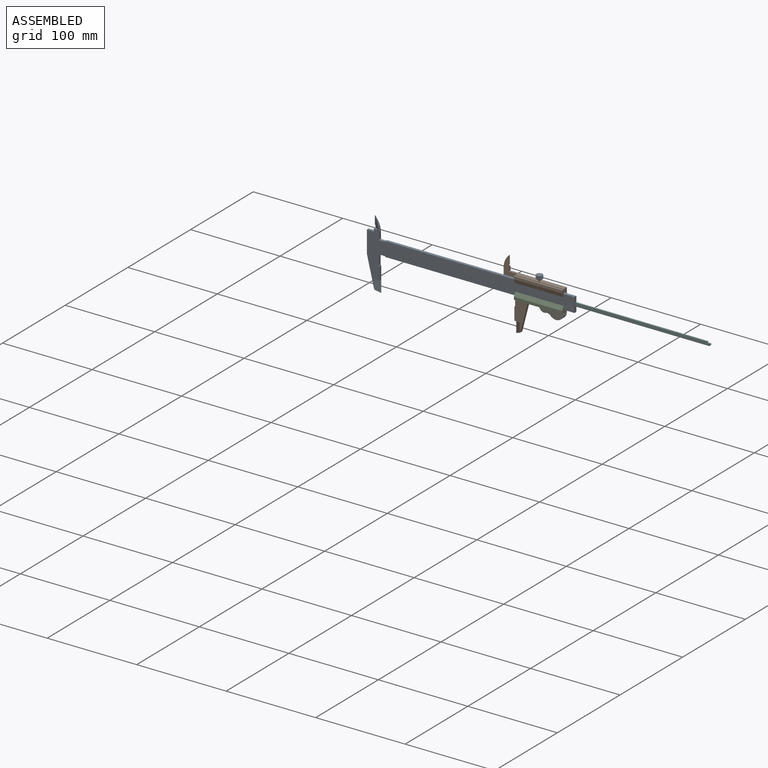
[diagram: assembled view]
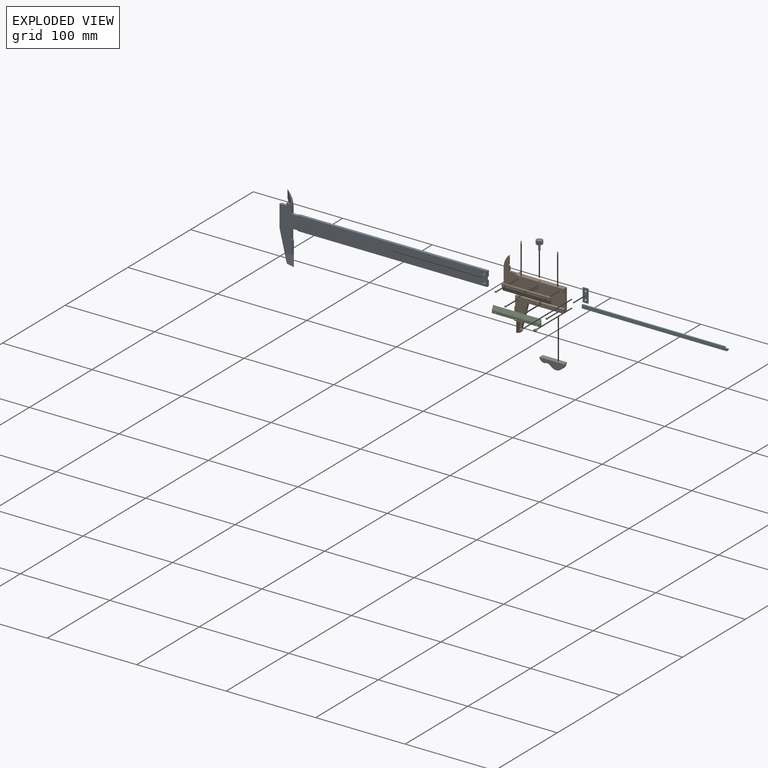
[diagram: exploded view]
GUIDED TOUR — MATED ASSEMBLY (Onshape document 9df944615ff0814e693e3ae6, AutoMate assembly 9df944615ff0814e693e3ae6_f2f7348a1d5a707c2a58e571_02034f61266606af6208ce54_default)

This assembly has 18 components, labeled P0..P17 below (a component is one placed occurrence of a part; the same part can appear more than once), held together by 18 mates. A mate is a constraint between two components; its type names the relative motion it leaves free:
  CYLINDRICAL — leaves both rotation about and translation along the listed axis free,
  FASTENED — locks the two components together rigidly (no relative motion),
  PLANAR — leaves sliding in the plane through the listed point (normal = the listed direction) and rotation about that normal free,
  SLIDER — leaves translation along the listed axis free.
Axis/direction vectors are unit vectors and 'through' points are millimeter coordinates, both in the assembly's world frame.

MATES
  1. SLIDER "Slider 1": P17 <-> P16, axis (-1.000, 0.000, 0.000) through (-40.62, -35.06, 24.15) mm
  2. FASTENED "Fastened 1": P1 <-> P17, direction (0.000, -1.000, 0.000) through (9.38, -38.06, 42.77) mm
  3. FASTENED "Fastened 9": P6 <-> P1, direction (0.000, 1.000, 0.000) through (-36.62, -38.56, 42.77) mm
  4. FASTENED "Fastened 8": P15 <-> P1, direction (0.000, 1.000, 0.000) through (-13.62, -38.56, 42.77) mm
  5. FASTENED "Fastened 14": P9 <-> P17, direction (0.000, 0.000, 1.000) through (-34.96, -36.56, 44.90) mm
  6. FASTENED "Fastened 2": P2 <-> P17, direction (0.000, -1.000, 0.000) through (-36.62, -38.06, 22.02) mm
  7. FASTENED "Fastened 7": P11 <-> P1, direction (0.000, 1.000, 0.000) through (9.38, -38.56, 42.77) mm
  8. FASTENED "Fastened 12": P3 <-> P2, direction (0.000, 1.000, 0.000) through (-36.62, -38.81, 22.02) mm
  9. FASTENED "Fastened 4": P8 <-> P16, direction (0.000, 1.000, 0.000) through (22.08, -35.06, 36.65) mm
  10. FASTENED "Fastened 11": P10 <-> P2, direction (0.000, 1.000, 0.000) through (-13.62, -38.81, 22.02) mm
  11. FASTENED "Fastened 5": P7 <-> P16, direction (0.000, 1.000, 0.000) through (22.08, -36.56, 36.65) mm
  12. FASTENED "Fastened 6": P4 <-> P16, direction (0.000, 1.000, 0.000) through (22.08, -36.56, 27.65) mm
  13. FASTENED "Fastened 13": P13 <-> P17, direction (0.000, 0.000, 1.000) through (5.84, -36.56, 44.90) mm
  14. CYLINDRICAL "Cylindrical 1": P0 <-> P17, axis (0.000, 0.000, 1.000) through (-14.56, -36.56, 44.31) mm
  15. PLANAR "Planar 1": P17 <-> P5, direction (1.000, 0.000, 0.000) through (13.38, -34.60, 32.40) mm
  16. FASTENED "Fastened 10": P12 <-> P2, direction (0.000, 1.000, 0.000) through (9.38, -38.81, 22.02) mm
  17. FASTENED "Fastened 3": P14 <-> P17, direction (0.000, 0.000, 1.000) through (13.38, -32.56, 19.90) mm
  18. SLIDER "Slider 2": P5 <-> P16, axis (-1.000, 0.000, 0.000) through (93.23, -36.71, 34.15) mm

ASSEMBLY ORDER
  1. P17 — the base component [order verified]
  2. P14 [order verified]
  3. P7 [order verified]
  4. P4 [order verified]
  5. P16 [order verified]
  6. P0 [order verified]
  7. P5 [order verified]
  8. P13 [order verified]
  9. P9 [order verified]
  10. P15 [order verified]
  11. P11 [order verified]
  12. P6 [order verified]
  13. P1 [order verified]
  14. P12 [order verified]
  15. P10 [order verified]
  16. P8 [order verified]
  17. P3 [order verified]
  18. P2 [order verified]
Order-tag legend:
  [order verified] — this step's position reverses a verified removal order: the component was checked to insert without passing through the ones already placed.

Of the 18 components, 4 carry the full construction recipe — the FeatureScript program that regenerates the part's solid from scratch; the rest are supplied as boundary geometry only.
Because this assembly has more than 12 components, the tour below covers the 12 most significant ones individually (every recipe-attached component first, then the largest by part volume), in assembly order; the remaining 6 are summarized together in a grouped section at the end.
Each toured component is shown spotlighted twice — in the assembled view, then in the exploded view, where a leader line traces a displaced component back to its assembled socket (saturated green if recipe-attached, orange if geometry-only; every other component desaturated gray) — followed by its recipe or geometry summary and the mates that hold it.
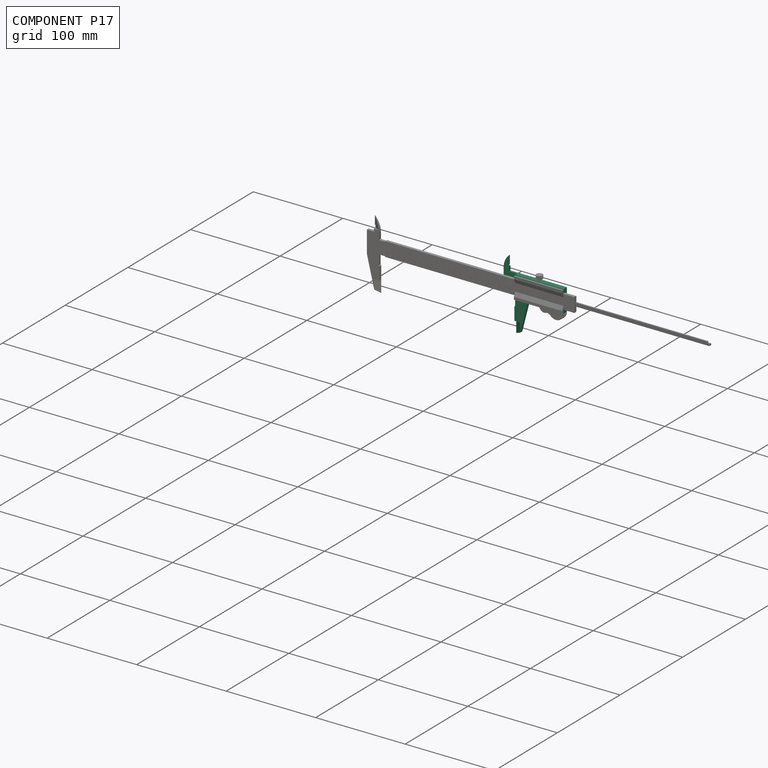
[diagram: component P17 — assembled]
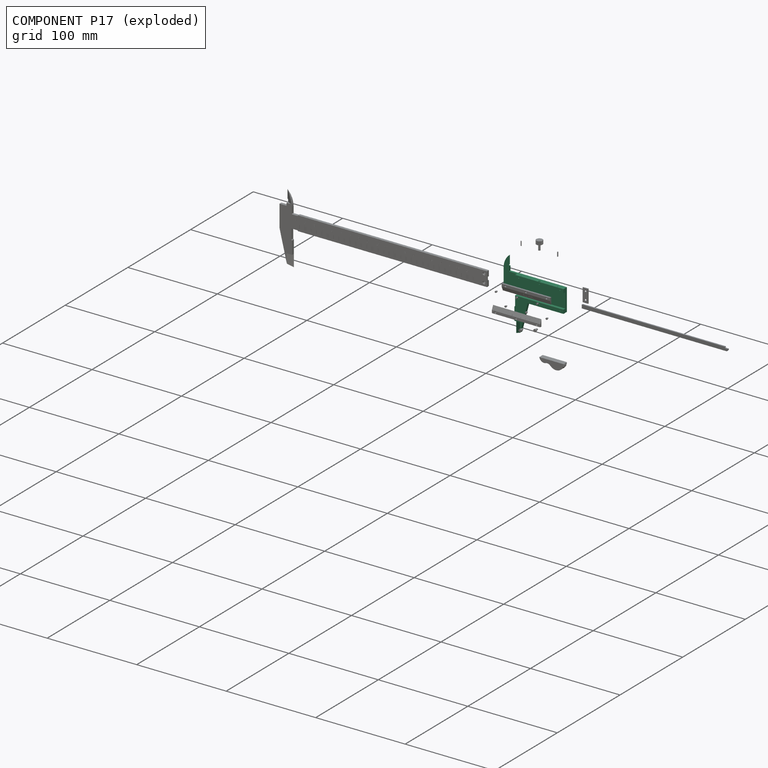
[diagram: component P17 — exploded]
COMPONENT P17 — recipe-attached (CADFS 00348871, mesh-verified: the recipe's output STEP matches this component's geometry to below the mesh-comparison resolution (tessellation chordal tolerance ~0.155 mm)).
Held by: SLIDER mate "Slider 1" to P16; FASTENED mate "Fastened 1" to P1; FASTENED mate "Fastened 14" to P9; FASTENED mate "Fastened 2" to P2; FASTENED mate "Fastened 13" to P13; CYLINDRICAL mate "Cylindrical 1" to P0; PLANAR mate "Planar 1" to P5; FASTENED mate "Fastened 3" to P14.
Construction recipe (FeatureScript — the CAD program that rebuilds this solid; sketch coordinates are in the units given by the * unit suffixes, e.g. mm):

FeatureScript 1511;
import(path : "onshape/std/geometry.fs", version : "1511.0");
import(path : "onshape/std/common.fs", version : "1511.0");
const mm = millimeter;
const VERTEX = EntityType.VERTEX;
const EDGE = EntityType.EDGE;
const FACE = EntityType.FACE;
const BODY = EntityType.BODY;
function v(x, y){return vector(x, y);}
function OD(order){return orderDisambiguation(order);}
function OSD(set){return originalSetDisambiguation(set);}
function TD(topology){return topologyDisambiguation(topology);}
function TDD(query){return trueDependencyDisambiguation(query);}
function sQuery(a, b, c) {return sketchEntityQuery(a, b, c);}

annotation { "Feature Type Name" : "Feature", "Feature Type Description" : "" }
export const myFeature = defineFeature(function(context is Context, id is Id, definition is map)
    precondition{}
    {
        {
            var Q0;
            Q0=qCreatedBy(makeId("Front.planeOp"),FACE);
            var sketch = newSketch(context, id + "F0", { "sketchPlane" : qUnion([Q0])});
            skLineSegment(sketch, "E0", {"start": v(0, 0) * mm, "end": v(-55.4, 0) * mm, "construction": true});
            skLineSegment(sketch, "E1", {"start": v(0, 12.5) * mm, "end": v(0, -12.5) * mm});
            skLineSegment(sketch, "E2", {"start": v(0, -12.5) * mm, "end": v(-40, -12.5) * mm});
            skLineSegment(sketch, "E3", {"start": v(-40, -12.5) * mm, "end": v(-48.17, -44.18) * mm});
            skLineSegment(sketch, "E4", {"start": v(-48.17, -44.18) * mm, "end": v(-54.8, -47.5) * mm});
            skLineSegment(sketch, "E5", {"start": v(-54.8, -47.5) * mm, "end": v(-54.8, -19.5) * mm});
            skLineSegment(sketch, "E6", {"start": v(-54.8, -19.5) * mm, "end": v(-54, -19.04) * mm});
            skLineSegment(sketch, "E7", {"start": v(-54, -19.04) * mm, "end": v(-54, -2.5) * mm});
            skLineSegment(sketch, "E8", {"start": v(-54, -2.5) * mm, "end": v(-68.93, -2.5) * mm});
            skLineSegment(sketch, "E9", {"start": v(-68.93, -2.5) * mm, "end": v(-68.93, 15.3) * mm});
            skLineSegment(sketch, "E10", {"start": v(0, 12.5) * mm, "end": v(-63, 12.5) * mm});
            skLineSegment(sketch, "E11", {"start": v(-63, 12.5) * mm, "end": v(-63, 19) * mm});
            skLineSegment(sketch, "E12", {"start": v(-62, 20) * mm, "end": v(-62, 29.5) * mm});
            skArc(sketch, "E13", {"start": v(-62, 29.5) * mm, "mid": v(-67.1, 23.2) * mm, "end": v(-68.93, 15.3) * mm});
            skArc(sketch, "E14", {"start": v(-62, 20) * mm, "mid": v(-62.7, 19.7) * mm, "end": v(-63, 19) * mm});
            skSolve(sketch);
        }
        {
            var Q0;
            Q0=qSketchRegion(id+"F0",true);
            extrude(context, id + "F1", {"entities" : qUnion([Q0]), "depth" : 5.5 * mm});
        }
        {
            var Q0;
            Q0=makeQuery(id+"F1.opExtrude","CAP_FACE",FACE,{"disambiguationData":[OSD([sQuery(id+"F0.wireOp",EDGE,"E1"),sQuery(id+"F0.wireOp",EDGE,"E2"),sQuery(id+"F0.wireOp",EDGE,"E3"),sQuery(id+"F0.wireOp",EDGE,"E4"),sQuery(id+"F0.wireOp",EDGE,"E5"),sQuery(id+"F0.wireOp",EDGE,"E6"),sQuery(id+"F0.wireOp",EDGE,"E7"),sQuery(id+"F0.wireOp",EDGE,"E8"),sQuery(id+"F0.wireOp",EDGE,"E9"),sQuery(id+"F0.wireOp",EDGE,"E10"),sQuery(id+"F0.wireOp",EDGE,"E11"),sQuery(id+"F0.wireOp",EDGE,"E12"),sQuery(id+"F0.wireOp",EDGE,"E13"),sQuery(id+"F0.wireOp",EDGE,"E14")])],"isStart":false});
            var sketch = newSketch(context, id + "F2", { "sketchPlane" : qUnion([Q0])});
            skLineSegment(sketch, "E15", {"start": v(0, 8.25) * mm, "end": v(0, -8.25) * mm});
            skLineSegment(sketch, "E16", {"start": v(0, -8.25) * mm, "end": v(-54, -8.25) * mm});
            skLineSegment(sketch, "E17", {"start": v(-54, -8.25) * mm, "end": v(-54, -2.5) * mm});
            skLineSegment(sketch, "E18", {"start": v(-54, -2.5) * mm, "end": v(-73.78, -2.5) * mm});
            skLineSegment(sketch, "E19", {"start": v(-73.78, -2.5) * mm, "end": v(-73.78, 31.93) * mm});
            skLineSegment(sketch, "E20", {"start": v(-73.78, 31.93) * mm, "end": v(-54, 31.93) * mm});
            skLineSegment(sketch, "E21", {"start": v(-54, 31.93) * mm, "end": v(-54, 8.25) * mm});
            skLineSegment(sketch, "E22", {"start": v(-54, 8.25) * mm, "end": v(0, 8.25) * mm});
            skSolve(sketch);
        }
        {
            var Q0;
            Q0=qSketchRegion(id+"F2",true);
            extrude(context, id + "F3", {"entities" : qUnion([Q0]), "operationType" : NewBodyOperationType.REMOVE, "oppositeDirection" : true, "depth" : 3 * mm});
        }
        {
            var Q0;
            {var subQ0=sQuery(id+"F0.wireOp",EDGE,"E1");var subQ1=sQuery(id+"F0.wireOp",EDGE,"E10");Q0=makeQuery(id+"F3.boolean.opBoolean","SPLIT",FACE,{"disambiguationData":[TD([makeQuery(id+"F1.opExtrude","SWEPT_FACE",FACE,{"disambiguationData":[OSD([subQ1])]})])],"derivedFrom":makeQuery(id+"F1.opExtrude","CAP_FACE",FACE,{"disambiguationData":[OSD([subQ0,sQuery(id+"F0.wireOp",EDGE,"E2"),sQuery(id+"F0.wireOp",EDGE,"E3"),sQuery(id+"F0.wireOp",EDGE,"E4"),sQuery(id+"F0.wireOp",EDGE,"E5"),sQuery(id+"F0.wireOp",EDGE,"E6"),sQuery(id+"F0.wireOp",EDGE,"E7"),sQuery(id+"F0.wireOp",EDGE,"E8"),sQuery(id+"F0.wireOp",EDGE,"E9"),subQ1,sQuery(id+"F0.wireOp",EDGE,"E11"),sQuery(id+"F0.wireOp",EDGE,"E12"),sQuery(id+"F0.wireOp",EDGE,"E13"),sQuery(id+"F0.wireOp",EDGE,"E14")])],"isStart":false})});}
            var sketch = newSketch(context, id + "F4", { "sketchPlane" : qUnion([Q0])});
            skLineSegment(sketch, "E23", {"start": v(0, 0) * mm, "end": v(-25.2, 0) * mm, "construction": true});
            skCircle(sketch, "E24", {"center": v(-4, 10.38) * mm, "radius": 0.5 * mm});
            skCircle(sketch, "E25", {"center": v(-27, 10.38) * mm, "radius": 0.5 * mm});
            skCircle(sketch, "E26", {"center": v(-50, 10.37) * mm, "radius": 0.5 * mm});
            skCircle(sketch, "E27.MirrorC", {"center": v(-50, -10.38) * mm, "radius": 0.5 * mm});
            skCircle(sketch, "E28.MirrorC", {"center": v(-27, -10.38) * mm, "radius": 0.5 * mm});
            skCircle(sketch, "E29.MirrorC", {"center": v(-4, -10.38) * mm, "radius": 0.5 * mm});
            skSolve(sketch);
        }
        {
            var Q0;
            Q0=qSketchRegion(id+"F4",true);
            extrude(context, id + "F5", {"entities" : qUnion([Q0]), "operationType" : NewBodyOperationType.REMOVE, "oppositeDirection" : true, "depth" : 1.12 * mm});
        }
        {
            var Q0;
            Q0=makeQuery(id+"F1.opExtrude","SWEPT_FACE",FACE,{"disambiguationData":[OSD([sQuery(id+"F0.wireOp",EDGE,"E10")])]});
            cPlane(context, id + "F6", {"entities" : qUnion([Q0]), "cplaneType" : CPlaneType.OFFSET, "offset" : 17.5 * mm, "width" : 150 * mm, "height" : 150 * mm});
        }
        {
            var Q0;
            Q0=makeQuery(id+"F1.opExtrude","SWEPT_FACE",FACE,{"disambiguationData":[OSD([sQuery(id+"F0.wireOp",EDGE,"E2")])]});
            var Q1;
            Q1=makeQuery(id+"F1.opExtrude","CAP_VERTEX",VERTEX,{"disambiguationData":[OSD([sQuery(id+"F0.wireOp",EDGE,"E4"),sQuery(id+"F0.wireOp",EDGE,"E5")])],"isStart":false});
            cPlane(context, id + "F7", {"entities" : qUnion([Q0, Q1]), "cplaneType" : CPlaneType.PLANE_POINT, "offset" : 34.75 * mm, "width" : 150 * mm, "height" : 150 * mm});
        }
        {
            var Q0;
            Q0=qCreatedBy(id+"F6.planeOp",FACE);
            var sketch = newSketch(context, id + "F8", { "sketchPlane" : qUnion([Q0])});
            skLineSegment(sketch, "E30.0", {"start": v(-62, -2.5) * mm, "end": v(-62, 0) * mm});
            skLineSegment(sketch, "E31", {"start": v(-62, 0) * mm, "end": v(-67.13, 0) * mm});
            skLineSegment(sketch, "E32", {"start": v(-67.13, 0) * mm, "end": v(-62, -2.5) * mm});
            skLineSegment(sketch, "E33", {"start": v(-62, -1.25) * mm, "end": v(-70.99, -1.25) * mm, "construction": true});
            skLineSegment(sketch, "E34.MirrorCS", {"start": v(-62, 0) * mm, "end": v(-62, -2.5) * mm});
            skSolve(sketch);
        }
        {
            var Q0;
            Q0=qSketchRegion(id+"F8",true);
            extrude(context, id + "F9", {"entities" : qUnion([Q0]), "operationType" : NewBodyOperationType.REMOVE, "oppositeDirection" : true, "depth" : 12.5 * mm});
        }
        {
            var Q0;
            Q0=makeQuery(id+"F1.opExtrude","SWEPT_FACE",FACE,{"disambiguationData":[OSD([sQuery(id+"F0.wireOp",EDGE,"E2")])]});
            var sketch = newSketch(context, id + "F10", { "sketchPlane" : qUnion([Q0])});
            skLineSegment(sketch, "E35.bottom", {"start": v(-40, 0) * mm, "end": v(-54.8, 0) * mm});
            skLineSegment(sketch, "E35.top", {"start": v(-40, 2.5) * mm, "end": v(-54.8, 2.5) * mm});
            skLineSegment(sketch, "E35.left", {"start": v(-40, 0) * mm, "end": v(-40, 2.5) * mm});
            skLineSegment(sketch, "E35.right", {"start": v(-54.8, 0) * mm, "end": v(-54.8, 2.5) * mm});
            skSolve(sketch);
        }
        {
            var Q0;
            Q0=qSketchRegion(id+"F10",true);
            extrude(context, id + "F11", {"entities" : qUnion([Q0]), "operationType" : NewBodyOperationType.REMOVE, "depth" : 47 * mm});
        }
        {
            var Q0;
            Q0=qCreatedBy(id+"F7.planeOp",FACE);
            var sketch = newSketch(context, id + "F12", { "sketchPlane" : qUnion([Q0])});
            skLineSegment(sketch, "E36.0", {"start": v(-54.8, 5.5) * mm, "end": v(-54.8, 2.5) * mm});
            skLineSegment(sketch, "E37", {"start": v(-54.8, 5.5) * mm, "end": v(-48.65, 5.5) * mm});
            skLineSegment(sketch, "E38", {"start": v(-48.65, 5.5) * mm, "end": v(-54.8, 2.5) * mm});
            skSolve(sketch);
        }
        {
            var Q0;
            Q0=qSketchRegion(id+"F12",true);
            extrude(context, id + "F13", {"entities" : qUnion([Q0]), "operationType" : NewBodyOperationType.REMOVE, "oppositeDirection" : true, "depth" : 13.5 * mm});
        }
        {
            var Q0;
            Q0=makeQuery(id+"F1.opExtrude","SWEPT_FACE",FACE,{"disambiguationData":[OSD([sQuery(id+"F0.wireOp",EDGE,"E10")])]});
            var sketch = newSketch(context, id + "F14", { "sketchPlane" : qUnion([Q0])});
            skCircle(sketch, "E39", {"center": v(-7.54, -4) * mm, "radius": 0.5 * mm});
            skCircle(sketch, "E40", {"center": v(-48.34, -4) * mm, "radius": 0.5 * mm});
            skSolve(sketch);
        }
        {
            var Q0;
            Q0=qSketchRegion(id+"F14",true);
            extrude(context, id + "F15", {"entities" : qUnion([Q0]), "operationType" : NewBodyOperationType.REMOVE, "endBound" : BoundingType.UP_TO_NEXT, "oppositeDirection" : true, "depth" : 3 * mm});
        }
        {
            var Q0;
            Q0=makeQuery(id+"F1.opExtrude","SWEPT_FACE",FACE,{"disambiguationData":[OSD([sQuery(id+"F0.wireOp",EDGE,"E10")])]});
            var sketch = newSketch(context, id + "F16", { "sketchPlane" : qUnion([Q0])});
            skCircle(sketch, "E41", {"center": v(-27.94, -4) * mm, "radius": 1 * mm});
            skPoint(sketch, "E42", {"position": v(-7.54, -4) * mm});
            skSolve(sketch);
        }
        {
            var Q0;
            Q0=qSketchRegion(id+"F16",true);
            extrude(context, id + "F17", {"entities" : qUnion([Q0]), "operationType" : NewBodyOperationType.REMOVE, "endBound" : BoundingType.UP_TO_NEXT, "oppositeDirection" : true, "depth" : 25 * mm});
        }
    });
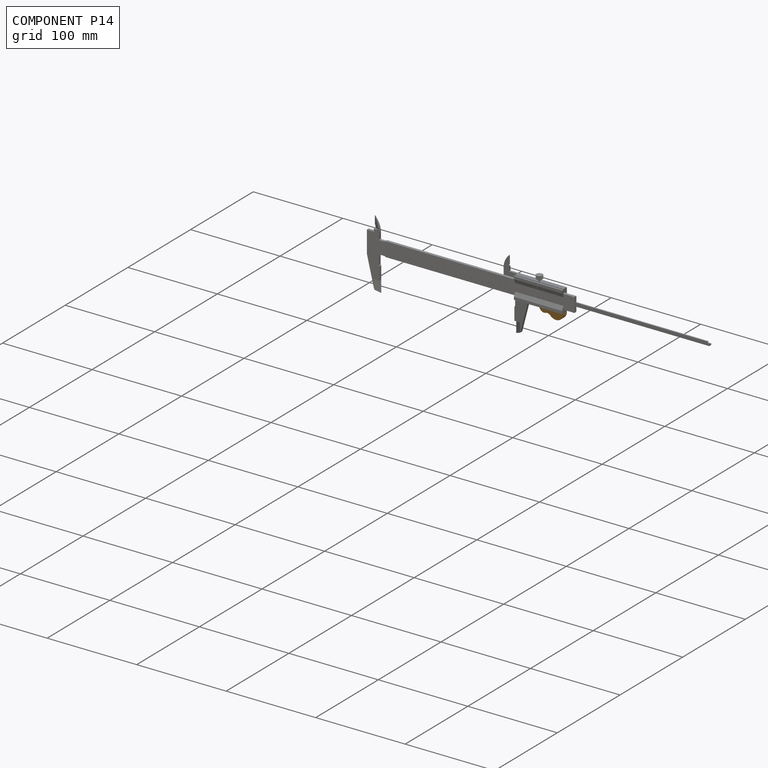
[diagram: component P14 — assembled]
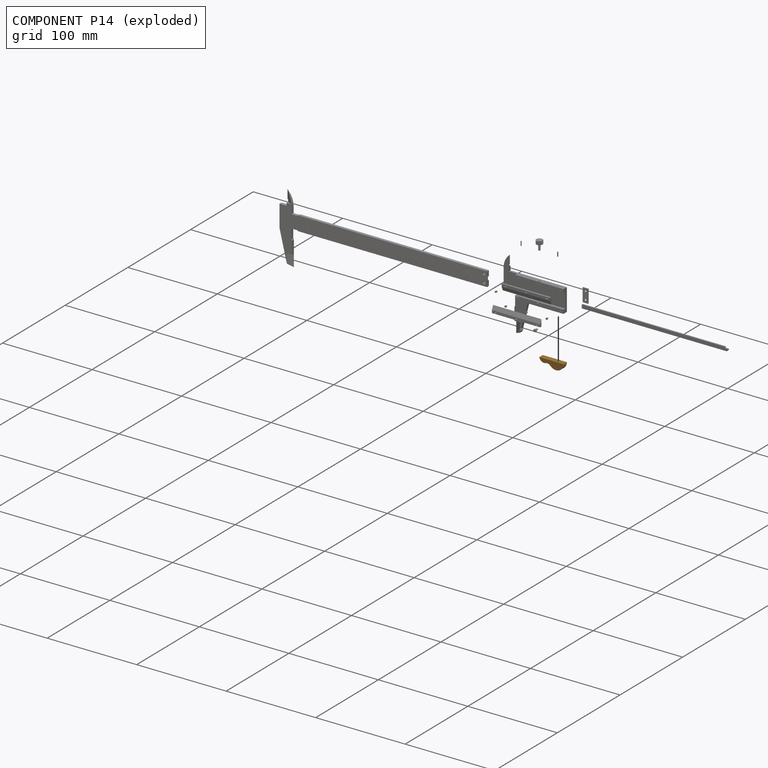
[diagram: component P14 — exploded]
COMPONENT P14 — geometry summary (no construction recipe available for this part):
  bounding box: 27.0 x 8.3 x 5.5 mm
  B-rep topology: 1 solid, 97 faces, 570 edges
  volume: 821 mm^3 (66% of its bounding box)
  symmetry: mirror-symmetric across its y mid-plane
Held by: FASTENED mate "Fastened 3" to P17.
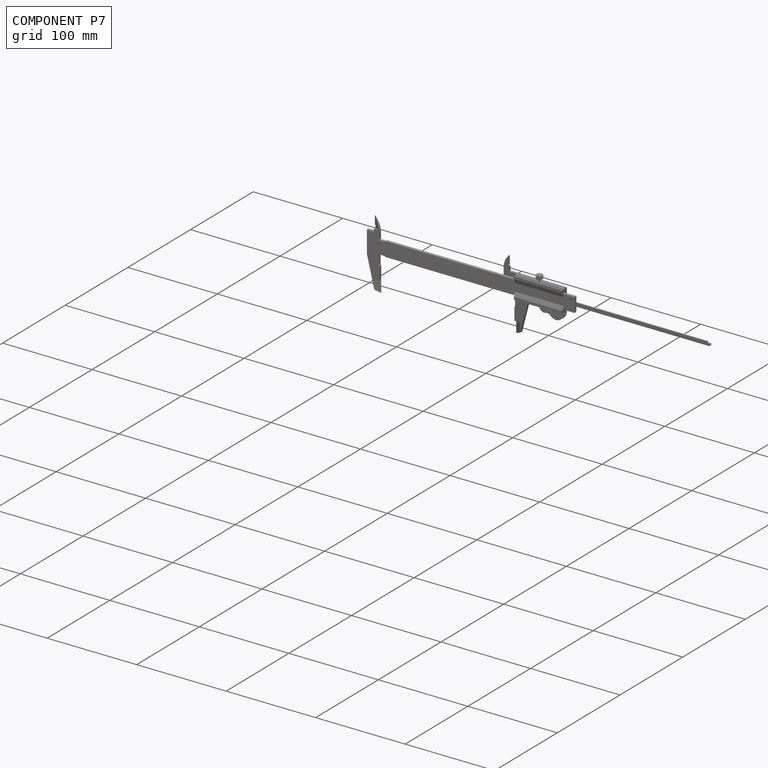
[diagram: component P7 — assembled]
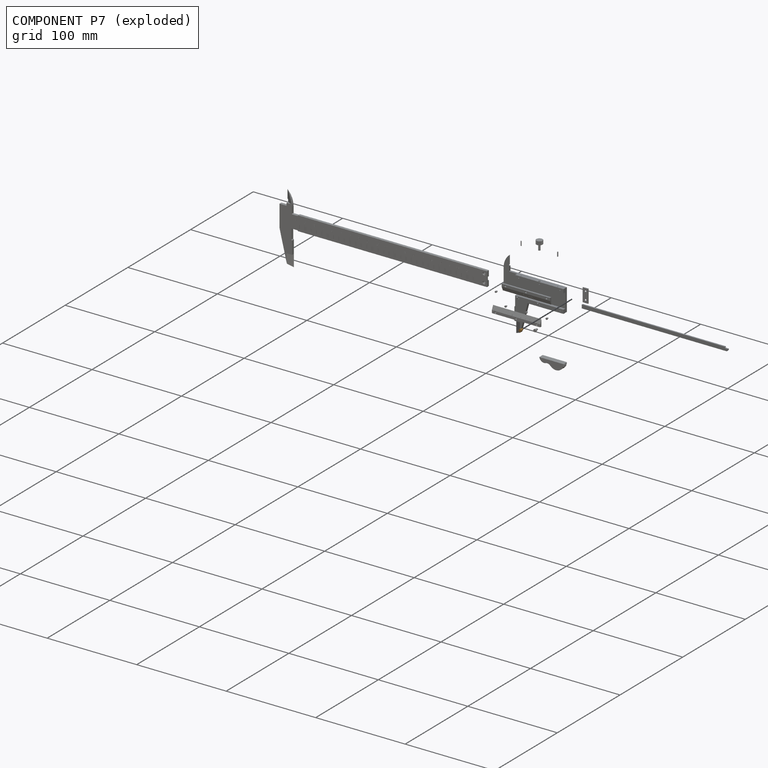
[diagram: component P7 — exploded]
COMPONENT P7 — geometry summary (no construction recipe available for this part):
  bounding box: 4.0 x 3.2 x 3.2 mm
  B-rep topology: 1 solid, 12 faces, 52 edges
  volume: 18 mm^3 (43% of its bounding box)
  symmetry: 2-fold rotationally symmetric about the z axis; mirror-symmetric across its x mid-plane, y mid-plane
Held by: FASTENED mate "Fastened 5" to P16.
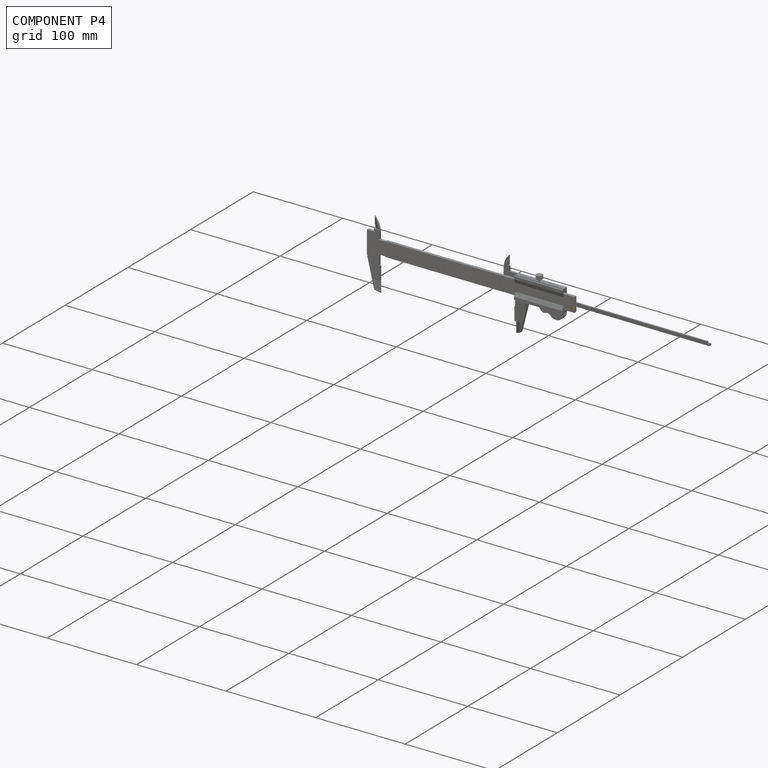
[diagram: component P4 — assembled]
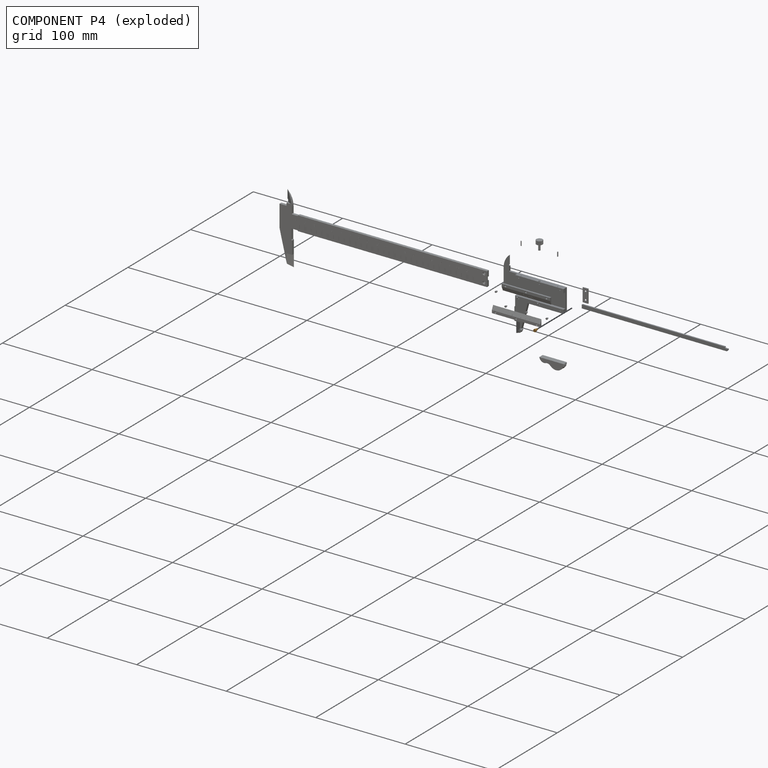
[diagram: component P4 — exploded]
COMPONENT P4 — geometry summary (no construction recipe available for this part):
  bounding box: 4.0 x 3.2 x 3.2 mm
  B-rep topology: 1 solid, 12 faces, 52 edges
  volume: 18 mm^3 (43% of its bounding box)
  symmetry: 2-fold rotationally symmetric about the z axis; mirror-symmetric across its x mid-plane, y mid-plane
Held by: FASTENED mate "Fastened 6" to P16.
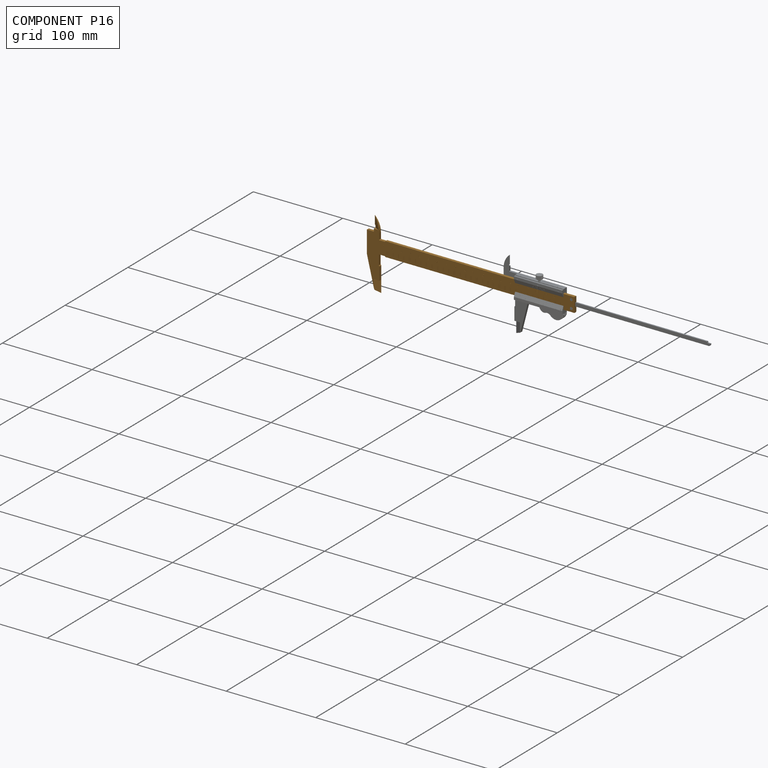
[diagram: component P16 — assembled]
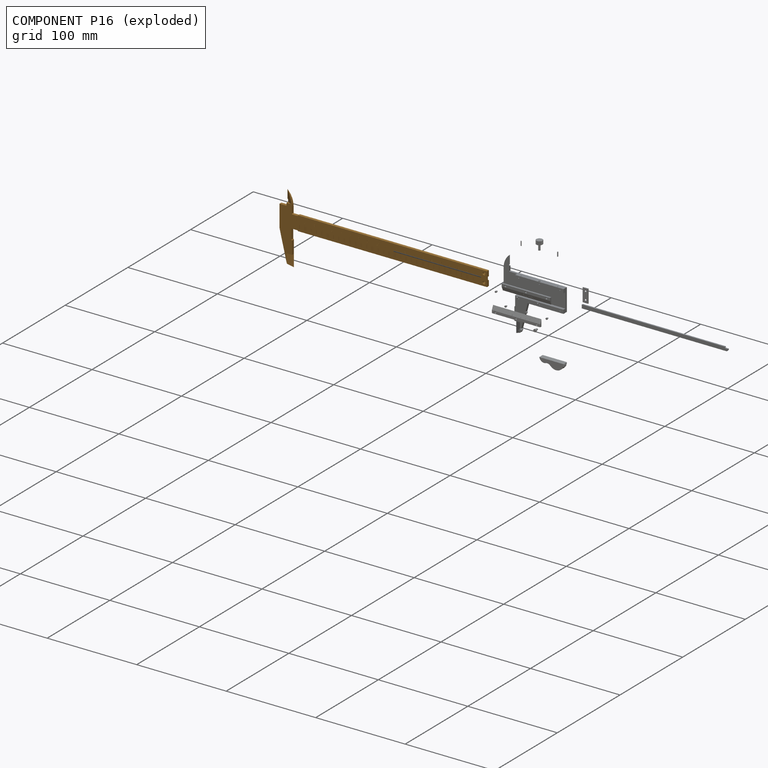
[diagram: component P16 — exploded]
COMPONENT P16 — geometry summary (no construction recipe available for this part):
  bounding box: 231.8 x 77.0 x 3.0 mm
  B-rep topology: 1 solid, 1584 faces, 8024 edges
  volume: 11036 mm^3 (21% of its bounding box)
Held by: SLIDER mate "Slider 1" to P17; FASTENED mate "Fastened 4" to P8; FASTENED mate "Fastened 5" to P7; FASTENED mate "Fastened 6" to P4; SLIDER mate "Slider 2" to P5.
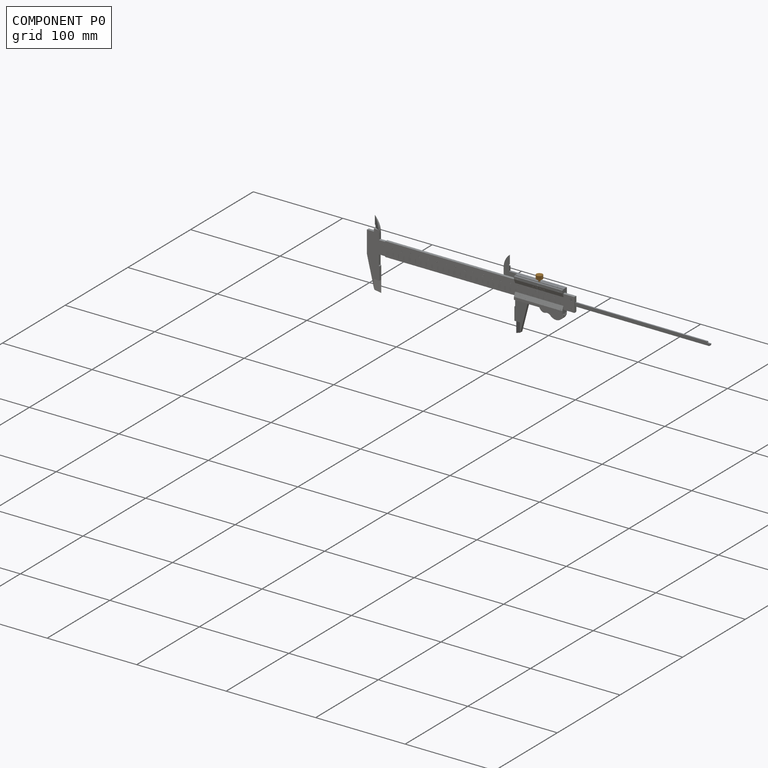
[diagram: component P0 — assembled]
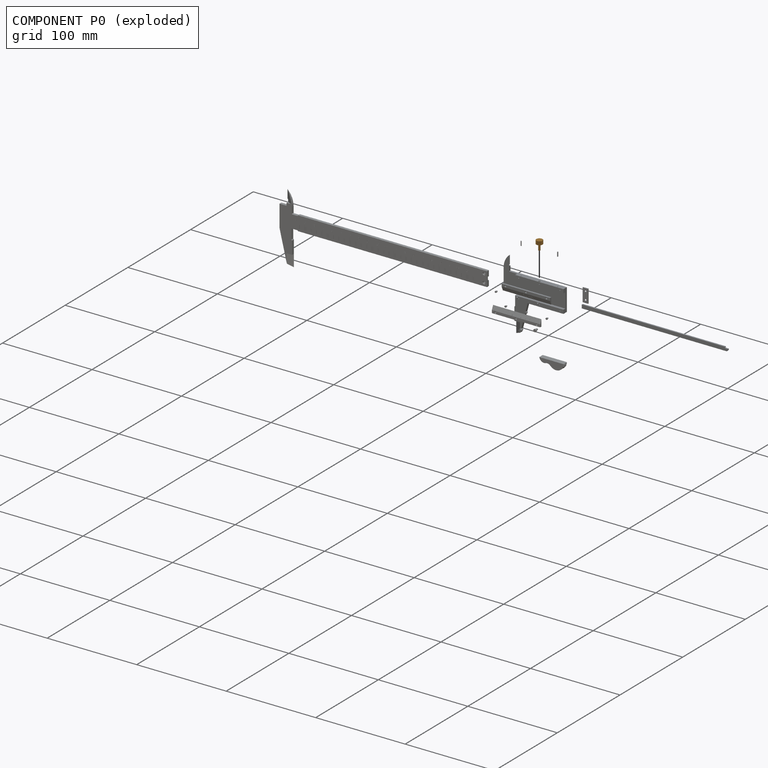
[diagram: component P0 — exploded]
COMPONENT P0 — geometry summary (no construction recipe available for this part):
  bounding box: 10.5 x 7.0 x 7.0 mm
  B-rep topology: 1 solid, 94 faces, 546 edges
  volume: 164 mm^3 (32% of its bounding box)
  symmetry: 6-fold rotationally symmetric about the y axis; mirror-symmetric across its x mid-plane, z mid-plane
Held by: CYLINDRICAL mate "Cylindrical 1" to P17.
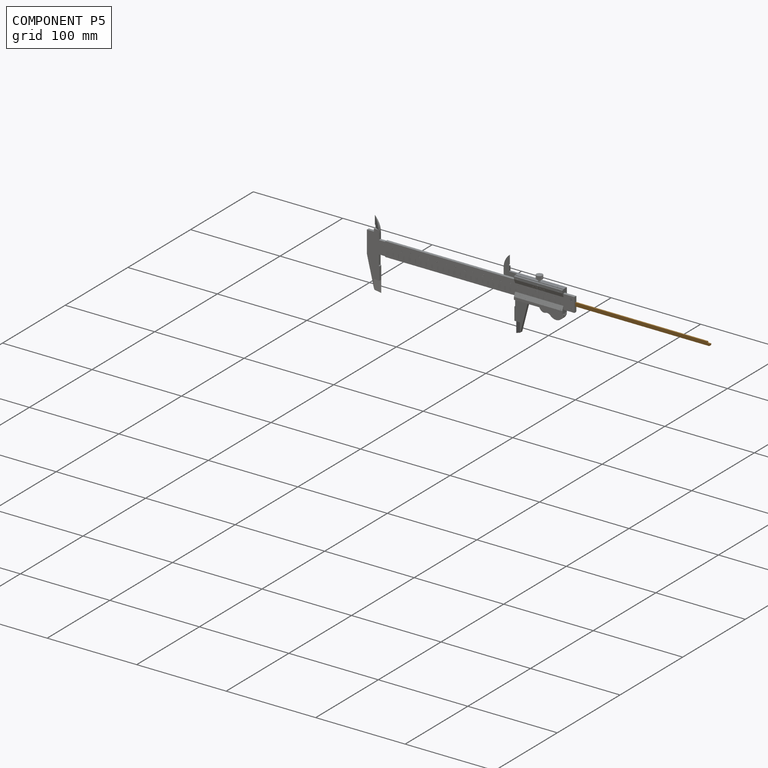
[diagram: component P5 — assembled]
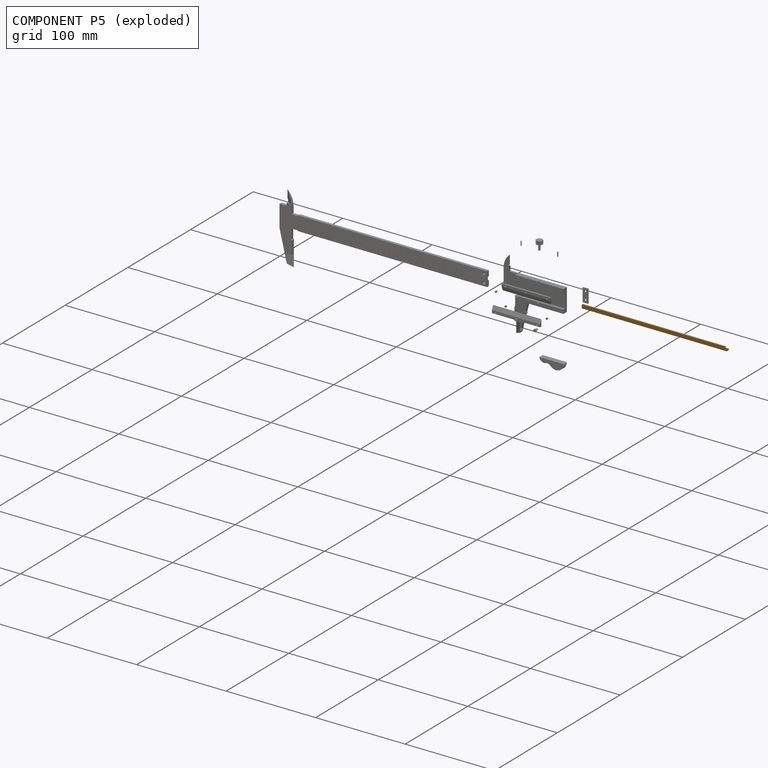
[diagram: component P5 — exploded]
COMPONENT P5 — geometry summary (no construction recipe available for this part):
  bounding box: 163.1 x 4.0 x 1.6 mm
  B-rep topology: 1 solid, 11 faces, 54 edges
  volume: 1021 mm^3 (99% of its bounding box)
  symmetry: mirror-symmetric across its x mid-plane
Held by: PLANAR mate "Planar 1" to P17; SLIDER mate "Slider 2" to P16.
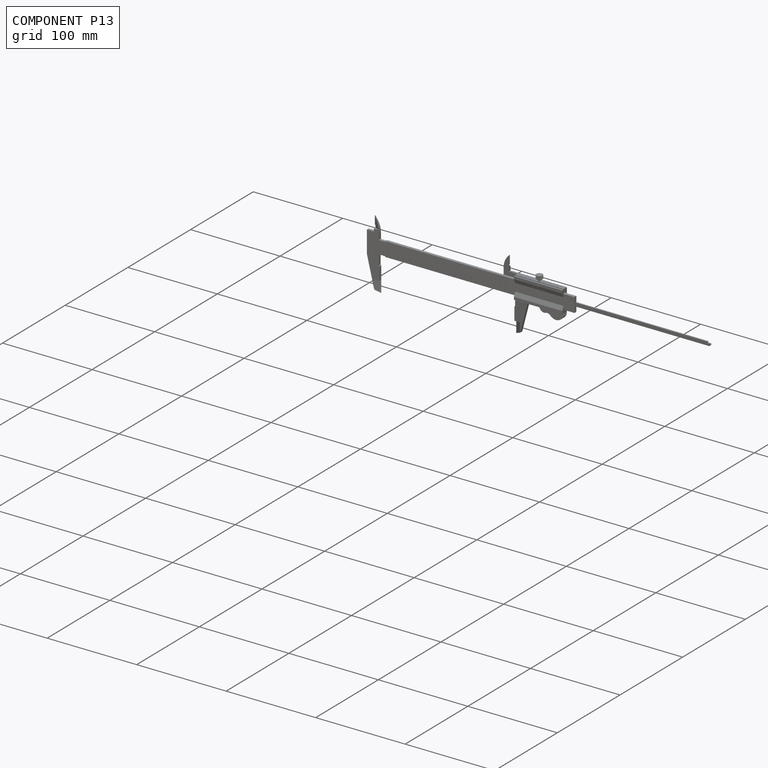
[diagram: component P13 — assembled]
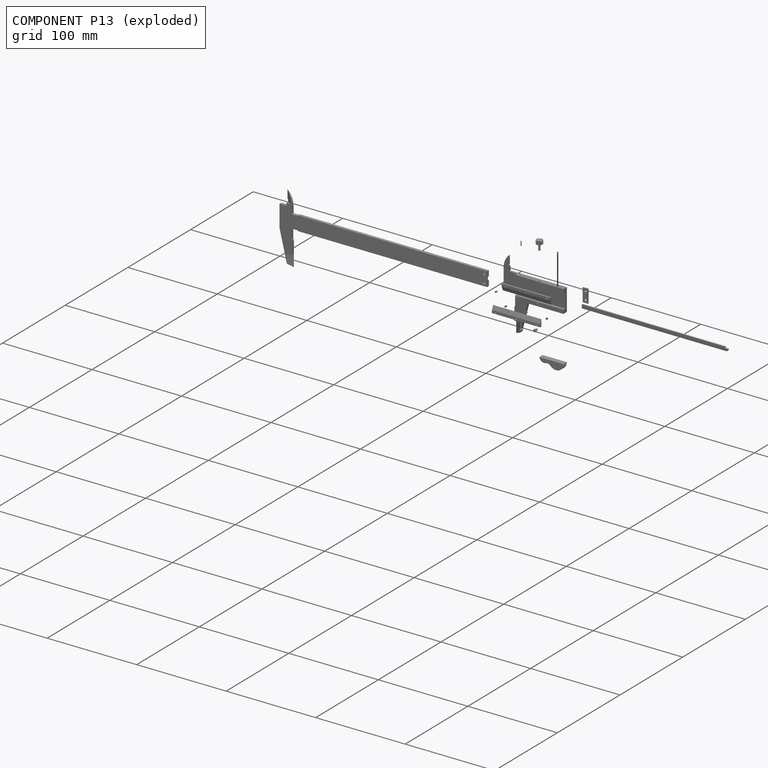
[diagram: component P13 — exploded]
COMPONENT P13 — same part as P9 (CADFS 00393920); its construction recipe is shown at P9.
Held by: FASTENED mate "Fastened 13" to P17.
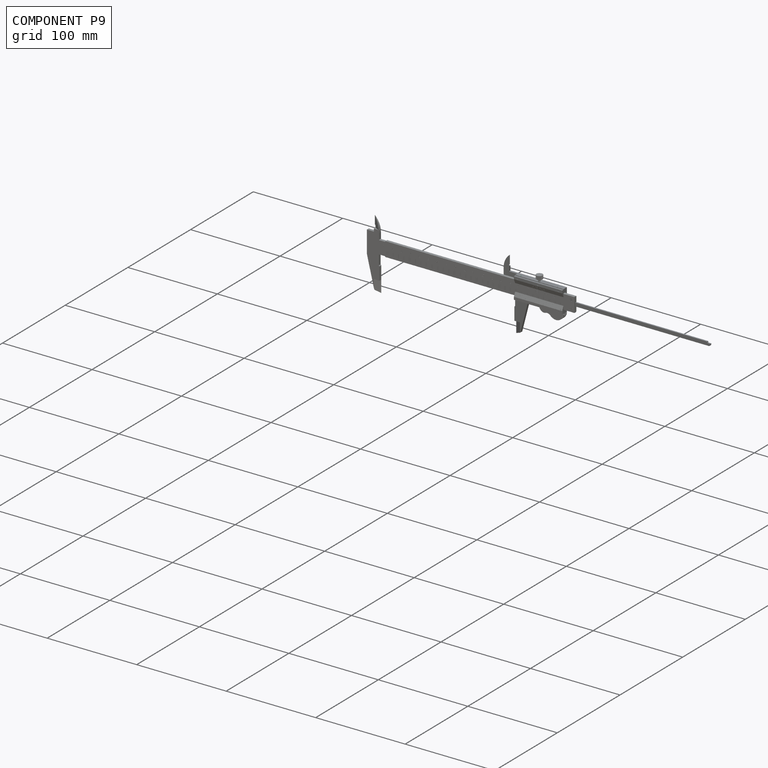
[diagram: component P9 — assembled]
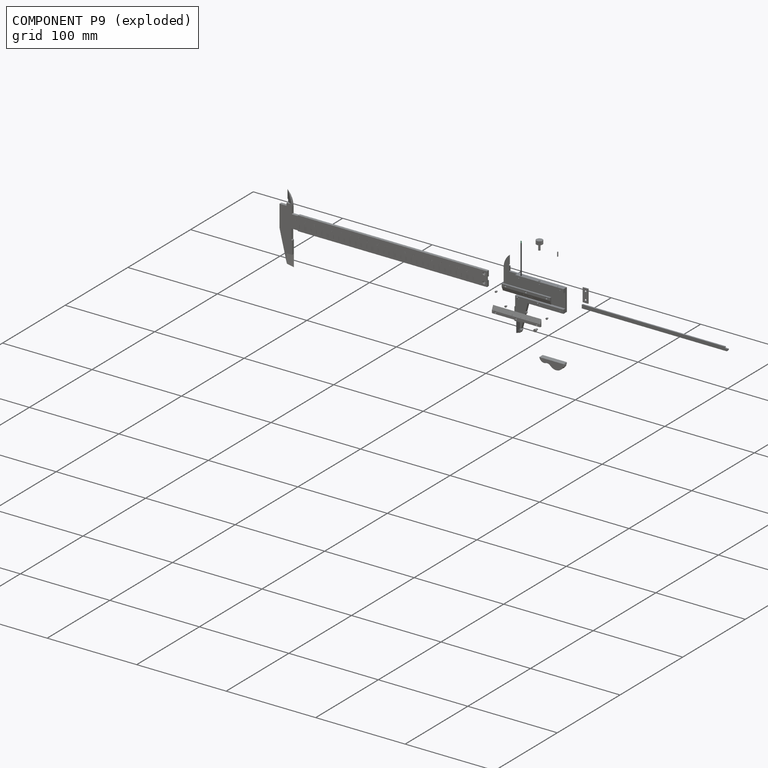
[diagram: component P9 — exploded]
COMPONENT P9 — recipe-attached (CADFS 00393920, mesh-verified: the recipe's output STEP matches this component's geometry to below the mesh-comparison resolution (tessellation chordal tolerance ~0.00743 mm)).
Held by: FASTENED mate "Fastened 14" to P17.
Construction recipe (FeatureScript — the CAD program that rebuilds this solid; sketch coordinates are in the units given by the * unit suffixes, e.g. mm):

FeatureScript 1511;
import(path : "onshape/std/geometry.fs", version : "1511.0");
import(path : "onshape/std/common.fs", version : "1511.0");
const mm = millimeter;
const VERTEX = EntityType.VERTEX;
const EDGE = EntityType.EDGE;
const FACE = EntityType.FACE;
const BODY = EntityType.BODY;
function v(x, y){return vector(x, y);}
function OD(order){return orderDisambiguation(order);}
function OSD(set){return originalSetDisambiguation(set);}
function TD(topology){return topologyDisambiguation(topology);}
function TDD(query){return trueDependencyDisambiguation(query);}
function sQuery(a, b, c) {return sketchEntityQuery(a, b, c);}

annotation { "Feature Type Name" : "Feature", "Feature Type Description" : "" }
export const myFeature = defineFeature(function(context is Context, id is Id, definition is map)
    precondition{}
    {
        {
            var Q0;
            Q0=qCreatedBy(makeId("Front.planeOp"),FACE);
            var sketch = newSketch(context, id + "F0", { "sketchPlane" : qUnion([Q0])});
            skCircle(sketch, "E0", {"center": v(0, 0) * mm, "radius": 0.5 * mm});
            skSolve(sketch);
        }
        {
            var Q0;
            Q0=qSketchRegion(id+"F0",true);
            extrude(context, id + "F1", {"entities" : qUnion([Q0]), "depth" : 4.75 * mm});
        }
        {
            var Q0;
            Q0=qCreatedBy(makeId("Top.planeOp"),FACE);
            var sketch = newSketch(context, id + "F2", { "sketchPlane" : qUnion([Q0])});
            skLineSegment(sketch, "E1", {"start": v(0, 0) * mm, "end": v(0, -4.88) * mm, "construction": true});
            skLineSegment(sketch, "E2.bottom", {"start": v(-0.15, 0) * mm, "end": v(0.15, 0) * mm});
            skLineSegment(sketch, "E2.top", {"start": v(-0.15, -0.35) * mm, "end": v(0.15, -0.35) * mm});
            skLineSegment(sketch, "E2.left", {"start": v(-0.15, 0) * mm, "end": v(-0.15, -0.35) * mm});
            skLineSegment(sketch, "E2.right", {"start": v(0.15, 0) * mm, "end": v(0.15, -0.35) * mm});
            skSolve(sketch);
        }
        {
            var Q0;
            Q0=qSketchRegion(id+"F2",true);
            extrude(context, id + "F3", {"entities" : qUnion([Q0]), "operationType" : NewBodyOperationType.REMOVE, "endBound" : BoundingType.SYMMETRIC, "depth" : 25 * mm});
        }
    });
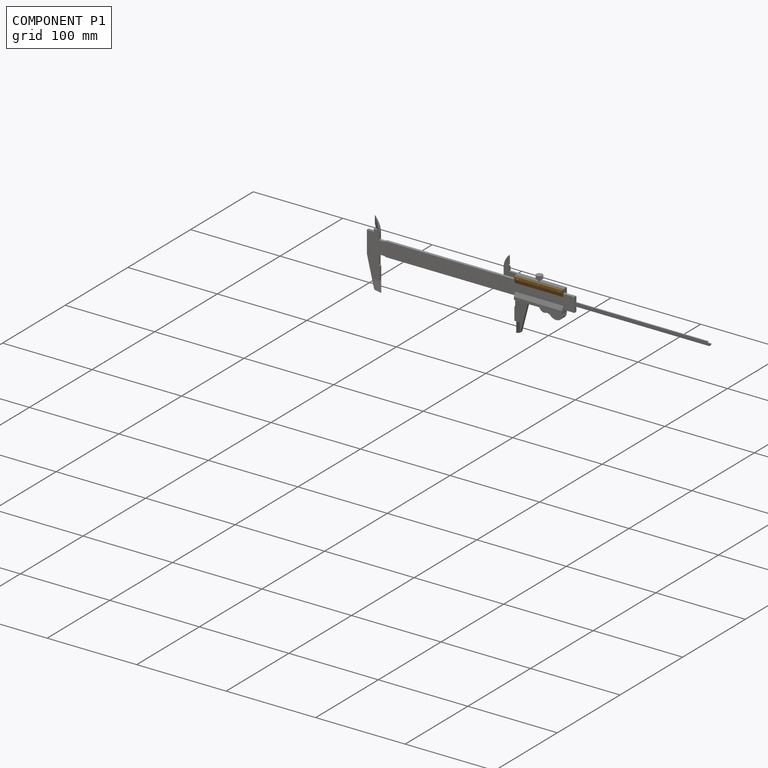
[diagram: component P1 — assembled]
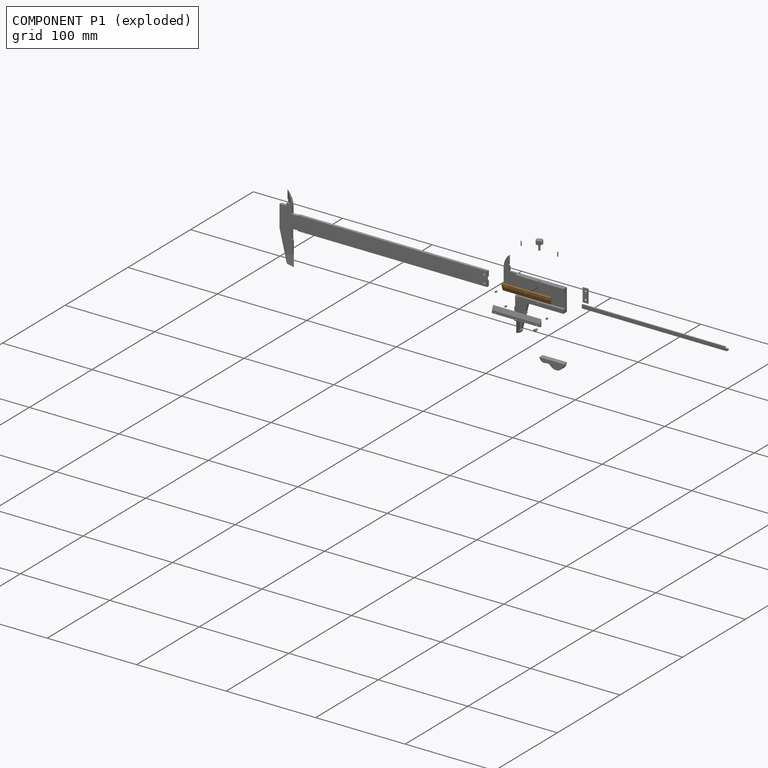
[diagram: component P1 — exploded]
COMPONENT P1 — geometry summary (no construction recipe available for this part):
  bounding box: 54.0 x 7.5 x 2.0 mm
  B-rep topology: 1 solid, 139 faces, 762 edges
  volume: 551 mm^3 (68% of its bounding box)
  symmetry: mirror-symmetric across its x mid-plane
Held by: FASTENED mate "Fastened 1" to P17; FASTENED mate "Fastened 9" to P6; FASTENED mate "Fastened 8" to P15; FASTENED mate "Fastened 7" to P11.
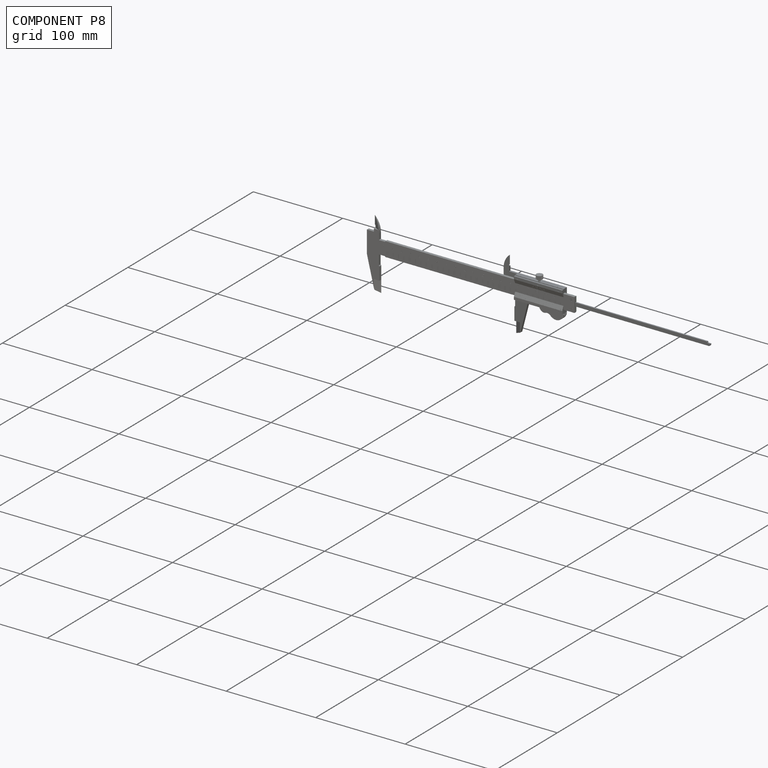
[diagram: component P8 — assembled]
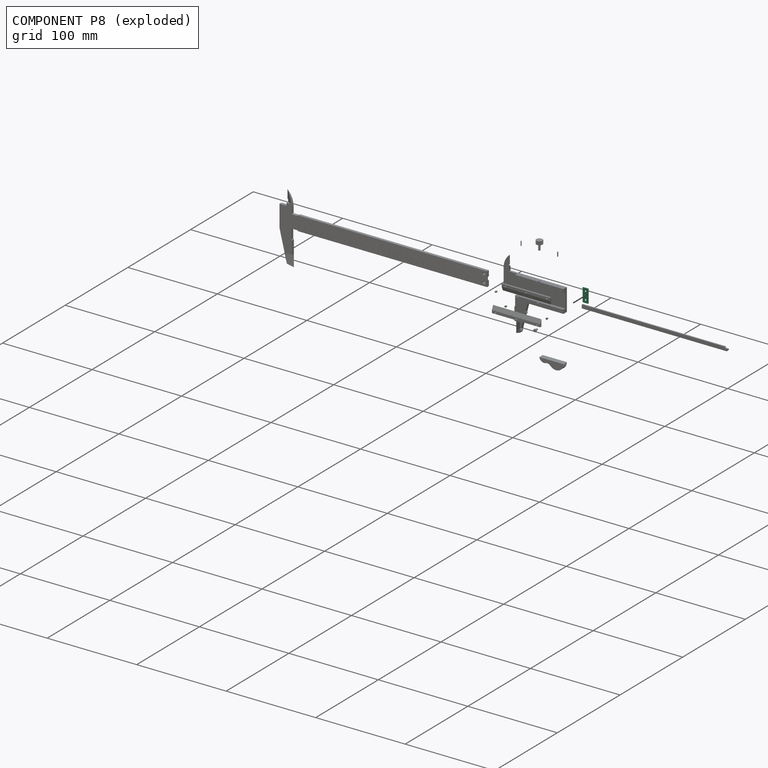
[diagram: component P8 — exploded]
COMPONENT P8 — recipe-attached (CADFS 00393925, mesh-verified: the recipe's output STEP matches this component's geometry to below the mesh-comparison resolution (tessellation chordal tolerance ~0.0243 mm)).
Held by: FASTENED mate "Fastened 4" to P16.
Construction recipe (FeatureScript — the CAD program that rebuilds this solid; sketch coordinates are in the units given by the * unit suffixes, e.g. mm):

FeatureScript 1511;
import(path : "onshape/std/geometry.fs", version : "1511.0");
import(path : "onshape/std/common.fs", version : "1511.0");
const mm = millimeter;
const VERTEX = EntityType.VERTEX;
const EDGE = EntityType.EDGE;
const FACE = EntityType.FACE;
const BODY = EntityType.BODY;
function v(x, y){return vector(x, y);}
function OD(order){return orderDisambiguation(order);}
function OSD(set){return originalSetDisambiguation(set);}
function TD(topology){return topologyDisambiguation(topology);}
function TDD(query){return trueDependencyDisambiguation(query);}
function sQuery(a, b, c) {return sketchEntityQuery(a, b, c);}

annotation { "Feature Type Name" : "Feature", "Feature Type Description" : "" }
export const myFeature = defineFeature(function(context is Context, id is Id, definition is map)
    precondition{}
    {
        {
            var Q0;
            Q0=qCreatedBy(makeId("Top.planeOp"),FACE);
            var sketch = newSketch(context, id + "F0", { "sketchPlane" : qUnion([Q0])});
            skLineSegment(sketch, "E0.bottom", {"start": v(0, 0) * mm, "end": v(15, 0) * mm});
            skLineSegment(sketch, "E0.top", {"start": v(0, 6) * mm, "end": v(15, 6) * mm});
            skLineSegment(sketch, "E0.left", {"start": v(0, 0) * mm, "end": v(0, 6) * mm});
            skLineSegment(sketch, "E0.right", {"start": v(15, 0) * mm, "end": v(15, 6) * mm});
            skCircle(sketch, "E1", {"center": v(3, 3) * mm, "radius": 1 * mm});
            skPoint(sketch, "E1.centerSnap0", {"position": v(15, 3) * mm});
            skCircle(sketch, "E2", {"center": v(12, 3) * mm, "radius": 1 * mm});
            skSolve(sketch);
        }
        {
            var Q0;
            Q0=qSketchRegion(id+"F0",true);
            extrude(context, id + "F1", {"entities" : qUnion([Q0]), "depth" : 1 * mm});
        }
    });
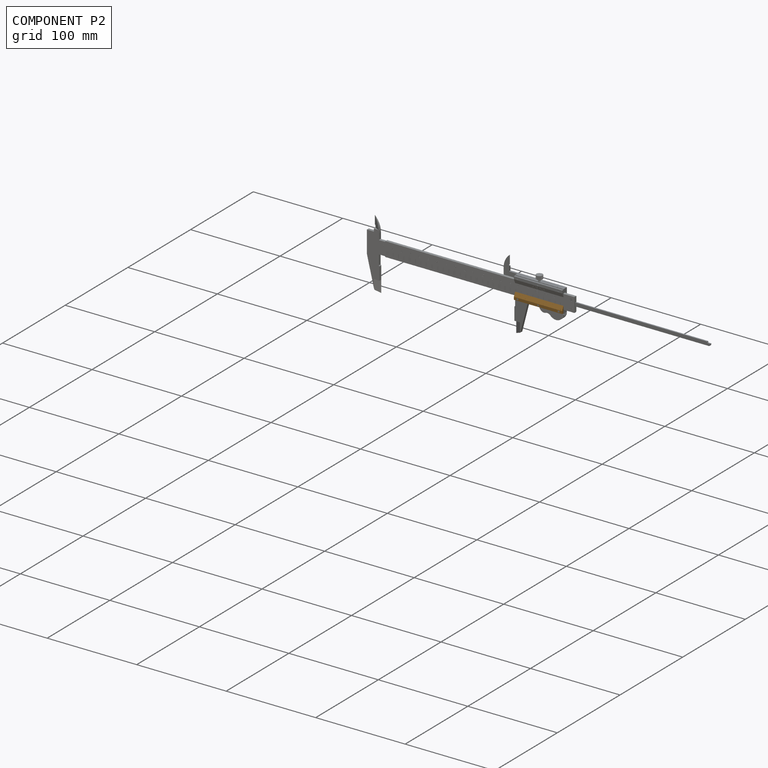
[diagram: component P2 — assembled]
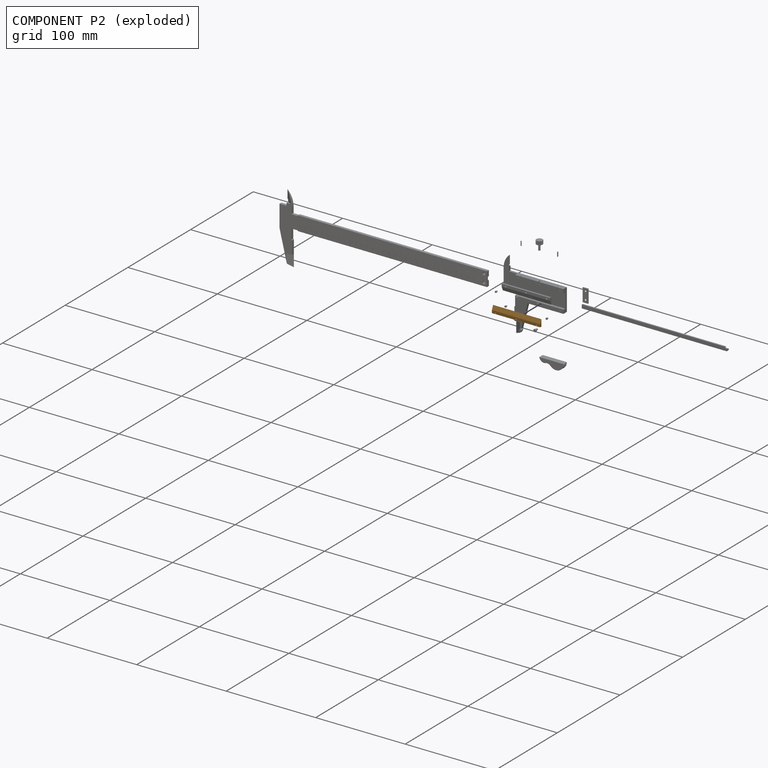
[diagram: component P2 — exploded]
COMPONENT P2 — geometry summary (no construction recipe available for this part):
  bounding box: 54.0 x 7.5 x 2.0 mm
  B-rep topology: 1 solid, 502 faces, 2574 edges
  volume: 553 mm^3 (68% of its bounding box)
  symmetry: mirror-symmetric across its x mid-plane
Held by: FASTENED mate "Fastened 2" to P17; FASTENED mate "Fastened 12" to P3; FASTENED mate "Fastened 11" to P10; FASTENED mate "Fastened 10" to P12.
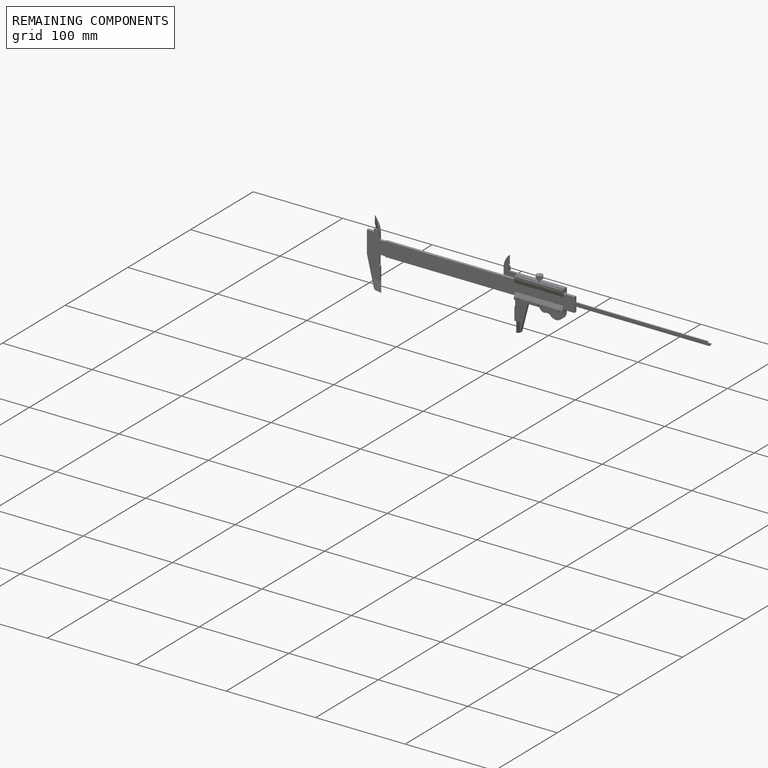
[diagram: remaining components — assembled]
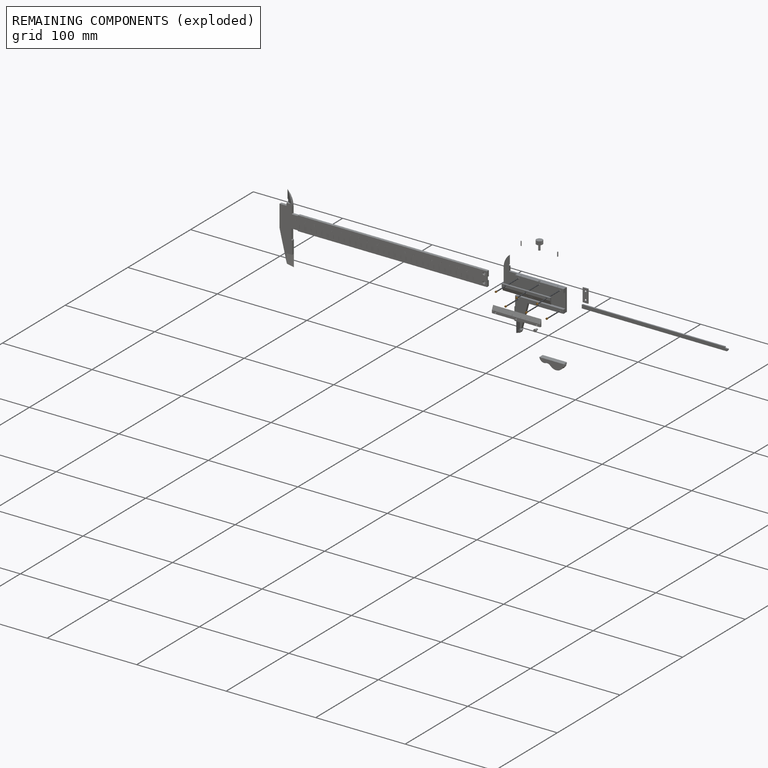
[diagram: remaining components — exploded]
REMAINING COMPONENTS (grouped) — the 6 components below fall outside the per-component tour by the significance rule stated above; both spotlight views highlight the whole group.
  P15: bounding box 2.5 x 2.2 x 2.1 mm, volume 5 mm^3. Held by: FASTENED mate "Fastened 8" to P1.
  P11: bounding box 2.5 x 2.2 x 2.1 mm, volume 5 mm^3. Held by: FASTENED mate "Fastened 7" to P1.
  P6: bounding box 2.5 x 2.2 x 2.1 mm, volume 5 mm^3. Held by: FASTENED mate "Fastened 9" to P1.
  P12: bounding box 2.5 x 2.2 x 2.1 mm, volume 5 mm^3. Held by: FASTENED mate "Fastened 10" to P2.
  P10: bounding box 2.5 x 2.2 x 2.1 mm, volume 5 mm^3. Held by: FASTENED mate "Fastened 11" to P2.
  P3: bounding box 2.5 x 2.2 x 2.1 mm, volume 5 mm^3. Held by: FASTENED mate "Fastened 12" to P2.
PROVENANCE & LICENSES
Assembly (occurrences, transforms, mates, per-part STEP geometry): AutoMate dataset, Zenodo record 7776208, CC0.
Construction recipes: CADFS (HuggingFace VladPyatov/CADFS, CC-BY-4.0, layered over the ABC dataset), FeatureScript reconstruction programs keyed by ABC model id.
Join: ABC meta listings map ABC model id -> Onshape documentId; within a shared document, parts are matched by geometric signature (bounding-box dims + volume at 0.1% relative tolerance, exact B-rep face/solid counts).
Verification: 4 of this assembly's 18 components carry a recipe attachment, and every attachment is mesh-verified: the CADFS STEP and the AutoMate member STEP were compared as meshes in their shared local frame (symmetric sampled-point-to-mesh distance); worst across the 4 attachments: below the mesh-comparison resolution (tessellation chordal tolerance ~0.155 mm) on a 103 mm part.
Renders: orthographic iso camera (az 35 / el 25); the floor grid conveys scale (grid pitch printed in each image; no ruler). In the exploded view each component is displaced by its stored offset vector: the offsets alone carry the explosion direction (mate normal/axis signs are not orientation cues and do not encode it), and separation distances are assigned per mate-chain, not proportionally to assembly-order depth.
